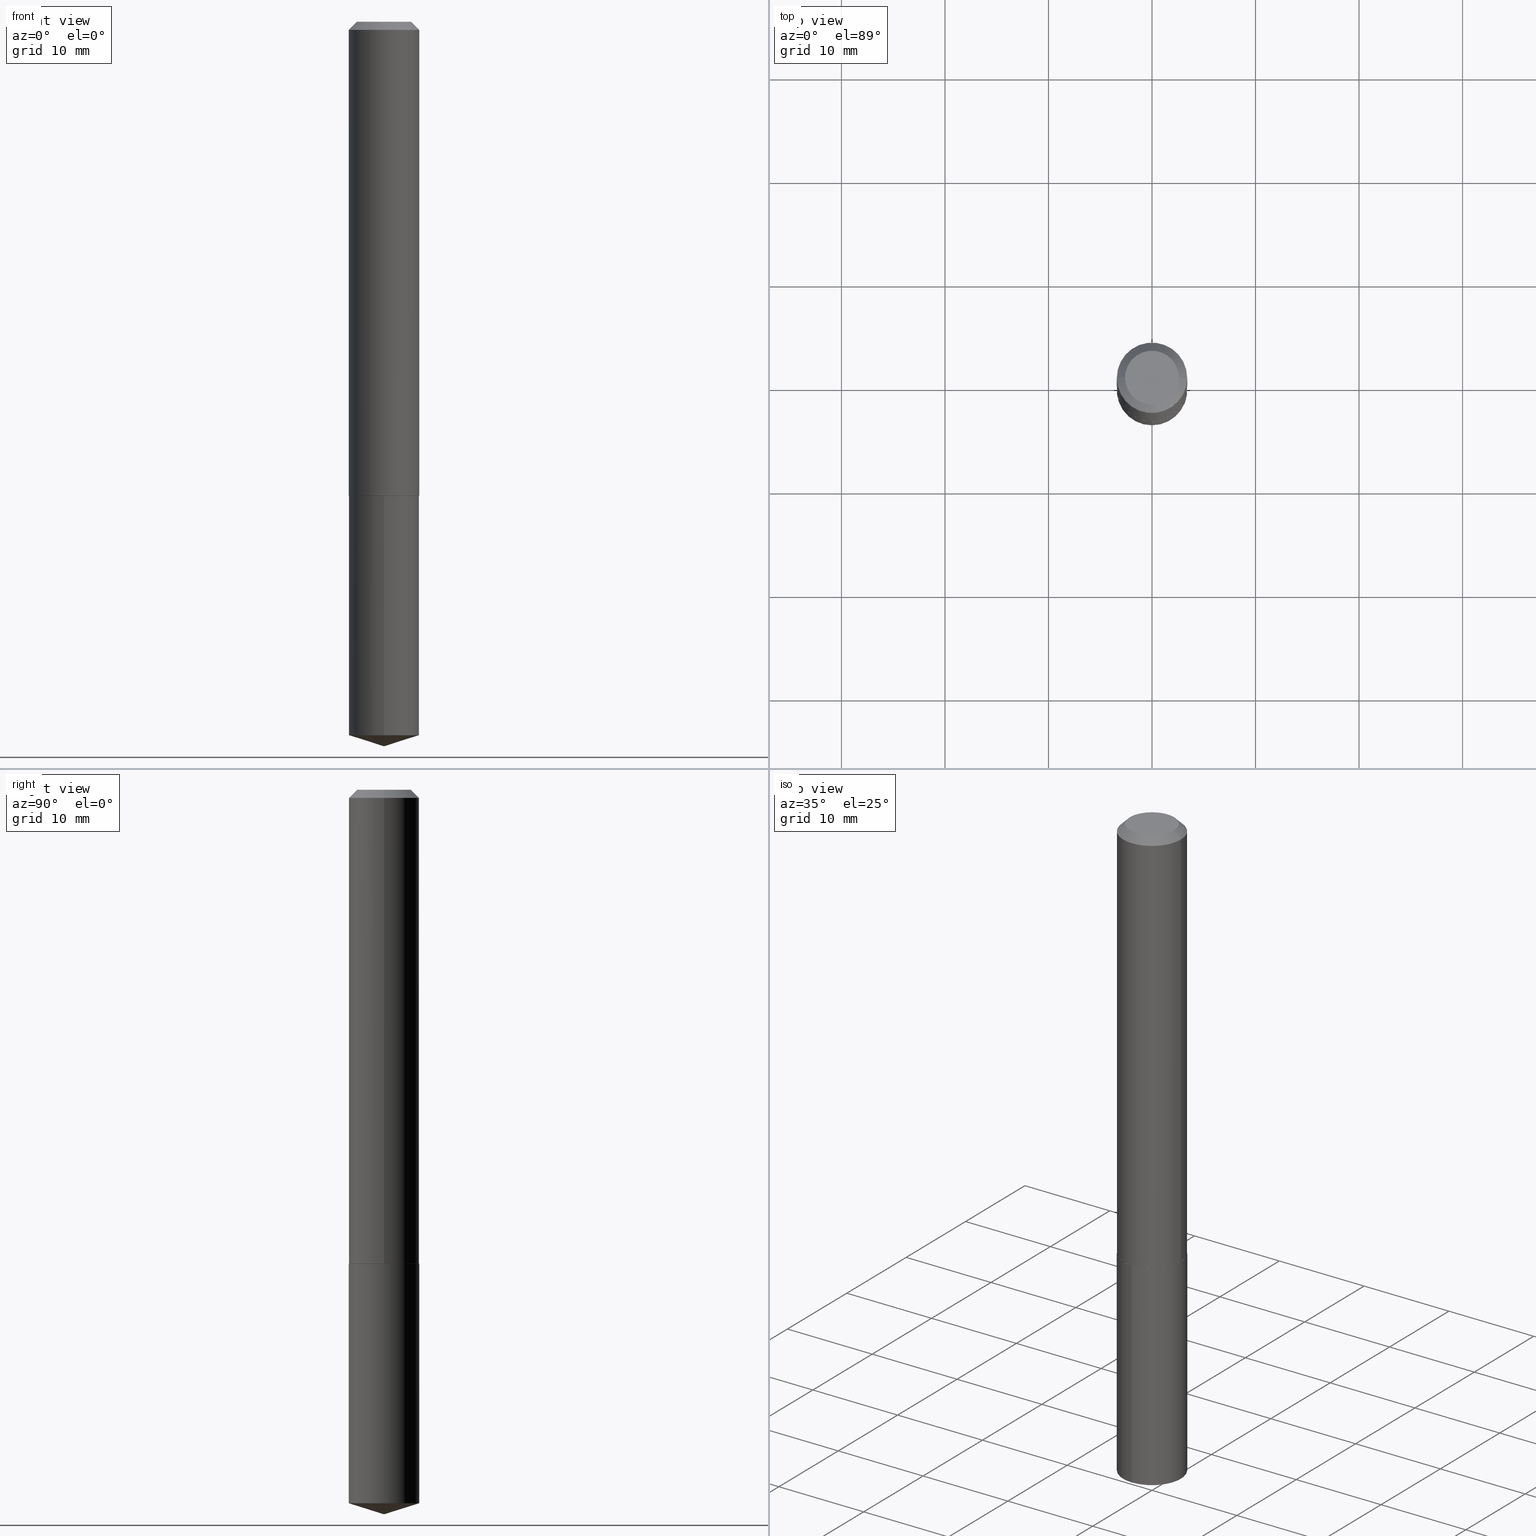
[diagram: canonical four-view strip — front | top / right | iso, engineering-drawing reading convention]
A machine part, canonical four-view strip (front | top / right | iso — engineering-drawing reading convention). The complete STEP part file that produces these views, byte-faithful:
ISO-10303-21;
HEADER;
FILE_DESCRIPTION (( 'STEP AP203' ),
    '1' );
FILE_NAME ('68603.STEP',
    '2024-04-23T13:17:34',
    ( '' ),
    ( '' ),
    'SwSTEP 2.0',
    'SolidWorks 2023',
    '' );
FILE_SCHEMA (( 'CONFIG_CONTROL_DESIGN' ));
ENDSEC;

DATA;
#1 = DIRECTION ( 'NONE',  ( 1.000000000000000000, -6.982962677686265133E-15, 0.000000000000000000 ) ) ;
#2 = CARTESIAN_POINT ( 'NONE',  ( 4.409424804432420683E-29, -6.295490002068076239E-15, -1.803100000000000147 ) ) ;
#3 = AXIS2_PLACEMENT_3D ( 'NONE', #388, #175, #363 ) ;
#4 = DIRECTION ( 'NONE',  ( 1.000000000000000000, -6.982962677686266711E-15, 4.876176775795934672E-29 ) ) ;
#5 = DIRECTION ( 'NONE',  ( -2.446102130504644901E-29, 3.490574382371028182E-15, 1.000000000000000000 ) ) ;
#6 = EDGE_LOOP ( 'NONE', ( #203, #209 ) ) ;
#7 = EDGE_CURVE ( 'NONE', #46, #259, #85, .T. ) ;
#8 = ORIENTED_EDGE ( 'NONE', *, *, #302, .T. ) ;
#9 = DIRECTION ( 'NONE',  ( -6.982962677686265133E-15, -1.000000000000000000, 4.081954417130015942E-15 ) ) ;
#10 = DIRECTION ( 'NONE',  ( 2.445468806185136597E-29, -3.491481338843145583E-15, -1.000000000000000000 ) ) ;
#11 = VECTOR ( 'NONE', #118, 39.37007874015748143 ) ;
#12 = CARTESIAN_POINT ( 'NONE',  ( -0.1338499999999999968, -2.250365074803857250E-15, -0.03125000000000022898 ) ) ;
#13 = EDGE_LOOP ( 'NONE', ( #268, #213, #58, #53 ) ) ;
#14 = SECURITY_CLASSIFICATION_LEVEL ( 'unclassified' ) ;
#15 = CC_DESIGN_DATE_AND_TIME_ASSIGNMENT ( #95, #52, ( #185 ) ) ;
#16 = ORIENTED_EDGE ( 'NONE', *, *, #190, .F. ) ;
#17 = ORIENTED_EDGE ( 'NONE', *, *, #198, .T. ) ;
#18 = DIRECTION ( 'NONE',  ( 1.000000000000000000, -6.982962677686265922E-15, 0.000000000000000000 ) ) ;
#19 = AXIS2_PLACEMENT_3D ( 'NONE', #288, #92, #323 ) ;
#20 = APPROVAL ( #32, 'UNSPECIFIED' ) ;
#21 = CARTESIAN_POINT ( 'NONE',  ( 4.409424804432420683E-29, -6.295490002068076239E-15, -1.803100000000000147 ) ) ;
#22 = DIRECTION ( 'NONE',  ( 1.000000000000000000, -6.982962677686265133E-15, 0.000000000000000000 ) ) ;
#23 = FACE_OUTER_BOUND ( 'NONE', #228, .T. ) ;
#24 = DIRECTION ( 'NONE',  ( -2.446102130504644901E-29, 3.490574382371028182E-15, 1.000000000000000000 ) ) ;
#25 = ORIENTED_EDGE ( 'NONE', *, *, #7, .T. ) ;
#26 = DIRECTION ( 'NONE',  ( 1.000000000000000000, -6.982962677686265922E-15, 4.876176775795935793E-29 ) ) ;
#27 = AXIS2_PLACEMENT_3D ( 'NONE', #73, #115, #248 ) ;
#28 = AXIS2_PLACEMENT_3D ( 'NONE', #180, #386, #243 ) ;
#29 = FACE_OUTER_BOUND ( 'NONE', #143, .T. ) ;
#30 = ORIENTED_EDGE ( 'NONE', *, *, #234, .F. ) ;
#31 = CARTESIAN_POINT ( 'NONE',  ( 4.409424804432420683E-29, -6.295490002068076239E-15, -1.803100000000000147 ) ) ;
#32 = APPROVAL_STATUS ( 'not_yet_approved' ) ;
#33 = ADVANCED_FACE ( 'NONE', ( #187 ), #276, .F. ) ;
#34 = AXIS2_PLACEMENT_3D ( 'NONE', #156, #10, #146 ) ;
#35 = EDGE_CURVE ( 'NONE', #46, #169, #88, .T. ) ;
#36 = APPROVAL_PERSON_ORGANIZATION ( #312, #20, #254 ) ;
#37 = CARTESIAN_POINT ( 'NONE',  ( 6.741212861457751070E-29, -9.619673940376316293E-15, -2.755900000000000016 ) ) ;
#38 = PLANE ( 'NONE',  #194 ) ;
#39 = ORIENTED_EDGE ( 'NONE', *, *, #322, .F. ) ;
#40 = EDGE_LOOP ( 'NONE', ( #56, #67, #241, #247 ) ) ;
#41 = APPROVAL_DATE_TIME ( #333, #218 ) ;
#42 = ORIENTED_EDGE ( 'NONE', *, *, #190, .T. ) ;
#43 = VECTOR ( 'NONE', #253, 39.37007874015748143 ) ;
#44 = LOCAL_TIME ( 9, 17, 34.00000000000000000, #345 ) ;
#45 = CARTESIAN_POINT ( 'NONE',  ( 0.1338500000000001910, -7.228413815806964033E-15, -1.802600000000000646 ) ) ;
#46 = VERTEX_POINT ( 'NONE', #37 ) ;
#47 = CALENDAR_DATE ( 2024, 23, 4 ) ;
#48 = PERSON_AND_ORGANIZATION ( #280, #51 ) ;
#49 = COORDINATED_UNIVERSAL_TIME_OFFSET ( 5, 0, .BEHIND. ) ;
#50 = ADVANCED_FACE ( 'NONE', ( #226 ), #86, .T. ) ;
#51 = ORGANIZATION ( 'UNSPECIFIED', 'UNSPECIFIED', '' ) ;
#52 = DATE_TIME_ROLE ( 'creation_date' ) ;
#53 = ORIENTED_EDGE ( 'NONE', *, *, #162, .F. ) ;
#54 = CARTESIAN_POINT ( 'NONE',  ( -9.346695544082625583E-16, -0.1338500000000062973, -1.803099999999999703 ) ) ;
#55 = DIRECTION ( 'NONE',  ( 0.7071067811865451302, -7.319954787623248157E-15, -0.7071067811865499042 ) ) ;
#56 = ORIENTED_EDGE ( 'NONE', *, *, #224, .F. ) ;
#57 = AXIS2_PLACEMENT_3D ( 'NONE', #188, #122, #369 ) ;
#58 = ORIENTED_EDGE ( 'NONE', *, *, #383, .T. ) ;
#59 = CARTESIAN_POINT ( 'NONE',  ( 0.000000000000000000, 0.000000000000000000, 0.000000000000000000 ) ) ;
#60 = ORIENTED_EDGE ( 'NONE', *, *, #302, .F. ) ;
#61 = DIRECTION ( 'NONE',  ( -2.445468806185136597E-29, 3.491481338843145583E-15, 1.000000000000000000 ) ) ;
#62 = DIMENSIONAL_EXPONENTS ( 1.000000000000000000, 0.000000000000000000, 0.000000000000000000, 0.000000000000000000, 0.000000000000000000, 0.000000000000000000, 0.000000000000000000 ) ;
#63 = DIRECTION ( 'NONE',  ( -2.446102130504644901E-29, 3.490574382371028182E-15, 1.000000000000000000 ) ) ;
#64 = AXIS2_PLACEMENT_3D ( 'NONE', #21, #244, #80 ) ;
#65 = SECURITY_CLASSIFICATION ( '', '', #14 ) ;
#66 = CYLINDRICAL_SURFACE ( 'NONE', #338, 0.1338500000000001078 ) ;
#67 = ORIENTED_EDGE ( 'NONE', *, *, #174, .T. ) ;
#68 = CARTESIAN_POINT ( 'NONE',  ( 0.000000000000000000, 0.000000000000000000, 0.000000000000000000 ) ) ;
#69 = ORIENTED_EDGE ( 'NONE', *, *, #342, .F. ) ;
#70 = ORIENTED_EDGE ( 'NONE', *, *, #112, .F. ) ;
#71 = CIRCLE ( 'NONE', #145, 0.1025999999999999829 ) ;
#72 = CIRCLE ( 'NONE', #57, 0.1338499999999999968 ) ;
#73 = CARTESIAN_POINT ( 'NONE',  ( 6.636838695077328277E-29, -9.473997460388503922E-15, -2.713697257108548921 ) ) ;
#74 = EDGE_CURVE ( 'NONE', #96, #321, #236, .T. ) ;
#75 = APPROVAL_PERSON_ORGANIZATION ( #103, #309, #263 ) ;
#76 = ORIENTED_EDGE ( 'NONE', *, *, #35, .T. ) ;
#77 = DIRECTION ( 'NONE',  ( -2.446102130504644901E-29, 3.490574382371028182E-15, 1.000000000000000000 ) ) ;
#78 = CC_DESIGN_APPROVAL ( #20, ( #185 ) ) ;
#79 = FACE_OUTER_BOUND ( 'NONE', #327, .T. ) ;
#80 = DIRECTION ( 'NONE',  ( 6.982962677686265922E-15, 1.000000000000000000, -3.490574382371027788E-15 ) ) ;
#81 = CC_DESIGN_PERSON_AND_ORGANIZATION_ASSIGNMENT ( #344, #221, ( #172 ) ) ;
#82 = CARTESIAN_POINT ( 'NONE',  ( 9.510614518149603401E-16, 0.1338499999999936685, -1.803100000000000813 ) ) ;
#83 = AXIS2_PLACEMENT_3D ( 'NONE', #372, #5, #9 ) ;
#84 = ADVANCED_FACE ( 'NONE', ( #382 ), #384, .F. ) ;
#85 = LINE ( 'NONE', #229, #43 ) ;
#86 = CONICAL_SURFACE ( 'NONE', #34, 0.1338499999999999968, 0.7853981633974449483 ) ;
#87 = AXIS2_PLACEMENT_3D ( 'NONE', #31, #144, #150 ) ;
#88 = LINE ( 'NONE', #90, #152 ) ;
#89 = CARTESIAN_POINT ( 'NONE',  ( -0.1338500000000001910, -5.342682809583759673E-15, -1.802600000000000646 ) ) ;
#90 = CARTESIAN_POINT ( 'NONE',  ( 6.741232888513621805E-29, -9.619673940376316293E-15, -2.755900000000000016 ) ) ;
#91 = CARTESIAN_POINT ( 'NONE',  ( 0.1338500000000001910, -7.228413815806964033E-15, -1.802600000000000646 ) ) ;
#92 = DIRECTION ( 'NONE',  ( -2.445468806185136597E-29, 3.491481338843145583E-15, 1.000000000000000000 ) ) ;
#93 = VECTOR ( 'NONE', #306, 39.37007874015748143 ) ;
#94 = ADVANCED_FACE ( 'NONE', ( #79 ), #293, .T. ) ;
#95 = DATE_AND_TIME ( #47, #355 ) ;
#96 = VERTEX_POINT ( 'NONE', #211 ) ;
#97 = DATE_TIME_ROLE ( 'classification_date' ) ;
#98 = CALENDAR_DATE ( 2024, 23, 4 ) ;
#99 = FACE_OUTER_BOUND ( 'NONE', #389, .T. ) ;
#100 = VECTOR ( 'NONE', #131, 39.37007874015748143 ) ;
#101 = CARTESIAN_POINT ( 'NONE',  ( 0.1338499999999999968, -1.043778346247155835E-15, -0.03125000000000022898 ) ) ;
#102 = EDGE_CURVE ( 'NONE', #138, #316, #71, .T. ) ;
#103 = PERSON_AND_ORGANIZATION ( #280, #51 ) ;
#104 = DIRECTION ( 'NONE',  ( 2.445468806185136597E-29, -3.491481338843145583E-15, -1.000000000000000000 ) ) ;
#105 =( CONVERSION_BASED_UNIT ( 'INCH', #238 ) LENGTH_UNIT ( ) NAMED_UNIT ( #62 ) );
#106 = DIRECTION ( 'NONE',  ( -2.445468806185136597E-29, 3.491481338843145583E-15, 1.000000000000000000 ) ) ;
#107 = ORIENTED_EDGE ( 'NONE', *, *, #7, .F. ) ;
#108 = EDGE_CURVE ( 'NONE', #259, #124, #205, .T. ) ;
#109 = LINE ( 'NONE', #357, #136 ) ;
#110 = VERTEX_POINT ( 'NONE', #82 ) ;
#111 = DIRECTION ( 'NONE',  ( -2.445468806185136597E-29, 3.491481338843145583E-15, 1.000000000000000000 ) ) ;
#112 = EDGE_CURVE ( 'NONE', #259, #169, #373, .T. ) ;
#113 = DIRECTION ( 'NONE',  ( 1.000000000000000000, -6.982962677686266711E-15, 4.876176775795934672E-29 ) ) ;
#114 = LINE ( 'NONE', #366, #11 ) ;
#115 = DIRECTION ( 'NONE',  ( -2.446102130504644901E-29, 3.490574382371028182E-15, 1.000000000000000000 ) ) ;
#116 = APPLICATION_PROTOCOL_DEFINITION ( 'international standard', 'config_control_design', 1994, #127 ) ;
#117 = CARTESIAN_POINT ( 'NONE',  ( 6.636838695077328277E-29, -9.473997460388503922E-15, -2.713697257108548921 ) ) ;
#118 = DIRECTION ( 'NONE',  ( -2.445468806185136877E-29, 3.491481338843145188E-15, 1.000000000000000000 ) ) ;
#119 = LINE ( 'NONE', #252, #93 ) ;
#120 = EDGE_CURVE ( 'NONE', #138, #141, #367, .T. ) ;
#121 = ORIENTED_EDGE ( 'NONE', *, *, #329, .F. ) ;
#122 = DIRECTION ( 'NONE',  ( -2.445468806185136597E-29, 3.491481338843145583E-15, 1.000000000000000000 ) ) ;
#123 = CARTESIAN_POINT ( 'NONE',  ( -8.956316257005759783E-28, 1.278028790087327418E-13, 36.61417874015747742 ) ) ;
#124 = VERTEX_POINT ( 'NONE', #54 ) ;
#125 = CLOSED_SHELL ( 'NONE', ( #157, #246, #365, #297, #235, #266, #50, #33 ) ) ;
#126 = EDGE_LOOP ( 'NONE', ( #17, #8 ) ) ;
#127 = APPLICATION_CONTEXT ( 'configuration controlled 3d designs of mechanical parts and assemblies' ) ;
#128 = ORIENTED_EDGE ( 'NONE', *, *, #142, .F. ) ;
#129 = FACE_OUTER_BOUND ( 'NONE', #13, .T. ) ;
#130 = PERSON_AND_ORGANIZATION ( #280, #51 ) ;
#131 = DIRECTION ( 'NONE',  ( -0.7071067811868855246, 7.493145998871575317E-15, 0.7071067811862095098 ) ) ;
#132 = VERTEX_POINT ( 'NONE', #260 ) ;
#133 =( NAMED_UNIT ( * ) SI_UNIT ( $, .STERADIAN. ) SOLID_ANGLE_UNIT ( ) );
#134 = FACE_OUTER_BOUND ( 'NONE', #6, .T. ) ;
#135 = VECTOR ( 'NONE', #305, 39.37007874015748143 ) ;
#136 = VECTOR ( 'NONE', #308, 39.37007874015748143 ) ;
#137 = CALENDAR_DATE ( 2024, 23, 4 ) ;
#138 = VERTEX_POINT ( 'NONE', #170 ) ;
#139 = UNCERTAINTY_MEASURE_WITH_UNIT (LENGTH_MEASURE( 1.000000000000000082E-05 ), #105, 'distance_accuracy_value', 'NONE');
#140 = DIRECTION ( 'NONE',  ( -2.445468806185136597E-29, 3.491481338843145583E-15, 1.000000000000000000 ) ) ;
#141 = VERTEX_POINT ( 'NONE', #101 ) ;
#142 = EDGE_CURVE ( 'NONE', #96, #279, #201, .T. ) ;
#143 = EDGE_LOOP ( 'NONE', ( #158, #281, #149, #30 ) ) ;
#144 = DIRECTION ( 'NONE',  ( -2.446102130504644901E-29, 3.490574382371028182E-15, 1.000000000000000000 ) ) ;
#145 = AXIS2_PLACEMENT_3D ( 'NONE', #267, #106, #264 ) ;
#146 = DIRECTION ( 'NONE',  ( -1.000000000000000000, 6.982962677686266711E-15, 0.000000000000000000 ) ) ;
#147 = VERTEX_POINT ( 'NONE', #12 ) ;
#148 = FACE_OUTER_BOUND ( 'NONE', #356, .T. ) ;
#149 = ORIENTED_EDGE ( 'NONE', *, *, #250, .T. ) ;
#150 = DIRECTION ( 'NONE',  ( -6.982962677686265133E-15, -1.000000000000000000, 4.081954417130015942E-15 ) ) ;
#151 = CARTESIAN_POINT ( 'NONE',  ( 0.1338499999999999968, -1.027386448840568494E-15, -0.03125000000000022898 ) ) ;
#152 = VECTOR ( 'NONE', #192, 39.37007874015748854 ) ;
#153 = CIRCLE ( 'NONE', #19, 0.1338500000000001910 ) ;
#154 = CYLINDRICAL_SURFACE ( 'NONE', #173, 0.1338500000000001078 ) ;
#155 = MECHANICAL_CONTEXT ( 'NONE', #127, 'mechanical' ) ;
#156 = CARTESIAN_POINT ( 'NONE',  ( 7.642090019328607041E-31, -1.091087918388490883E-16, -0.03125000000000022898 ) ) ;
#157 = ADVANCED_FACE ( 'NONE', ( #129 ), #160, .T. ) ;
#158 = ORIENTED_EDGE ( 'NONE', *, *, #371, .F. ) ;
#159 = EDGE_LOOP ( 'NONE', ( #376, #25, #121 ) ) ;
#160 = CONICAL_SURFACE ( 'NONE', #380, 0.1338499999999999968, 0.7853981633974449483 ) ;
#161 = CC_DESIGN_APPROVAL ( #309, ( #65 ) ) ;
#162 = EDGE_CURVE ( 'NONE', #316, #147, #210, .T. ) ;
#163 = ADVANCED_FACE ( 'NONE', ( #23 ), #214, .T. ) ;
#164 = DIRECTION ( 'NONE',  ( -2.446102130504644901E-29, 3.490574382371028182E-15, 1.000000000000000000 ) ) ;
#165 = ORIENTED_EDGE ( 'NONE', *, *, #102, .T. ) ;
#166 = MANIFOLD_SOLID_BREP ( 'Body-Move/Copy2[1]', #269 ) ;
#167 = PERSON_AND_ORGANIZATION_ROLE ( 'classification_officer' ) ;
#168 = SHAPE_DEFINITION_REPRESENTATION ( #195, #332 ) ;
#169 = VERTEX_POINT ( 'NONE', #240 ) ;
#170 = CARTESIAN_POINT ( 'NONE',  ( 0.1025999999999999829, -8.656367717059636643E-16, -8.199010320285999093E-18 ) ) ;
#171 = APPLICATION_CONTEXT ( 'configuration controlled 3d designs of mechanical parts and assemblies' ) ;
#172 = PRODUCT ( '68603', '68603', '', ( #155 ) ) ;
#173 = AXIS2_PLACEMENT_3D ( 'NONE', #68, #212, #4 ) ;
#174 = EDGE_CURVE ( 'NONE', #321, #96, #364, .T. ) ;
#175 = DIRECTION ( 'NONE',  ( -2.445468806185136597E-29, 3.491481338843145583E-15, 1.000000000000000000 ) ) ;
#176 = ORIENTED_EDGE ( 'NONE', *, *, #224, .T. ) ;
#177 = DIRECTION ( 'NONE',  ( -2.446102130504644901E-29, 3.490574382371028182E-15, 1.000000000000000000 ) ) ;
#178 = DIRECTION ( 'NONE',  ( -0.7071067811865451302, 2.468850131082231817E-15, -0.7071067811865499042 ) ) ;
#179 = CARTESIAN_POINT ( 'NONE',  ( -9.346695544082625583E-16, -0.1338500000000062973, -1.803099999999999703 ) ) ;
#180 = CARTESIAN_POINT ( 'NONE',  ( 4.408202070029328442E-29, -6.293744261398656313E-15, -1.802600000000000646 ) ) ;
#181 = VECTOR ( 'NONE', #287, 39.37007874015748143 ) ;
#182 = CIRCLE ( 'NONE', #87, 0.1338499999999999968 ) ;
#183 = DIRECTION ( 'NONE',  ( -2.445468806185136597E-29, 3.491481338843145583E-15, 1.000000000000000000 ) ) ;
#184 = ORIENTED_EDGE ( 'NONE', *, *, #112, .T. ) ;
#185 = PRODUCT_DEFINITION ( 'UNKNOWN', '', #237, #274 ) ;
#186 = CARTESIAN_POINT ( 'NONE',  ( -9.346695544082404702E-16, -0.1338500000000095169, -2.713697257108548477 ) ) ;
#187 = FACE_OUTER_BOUND ( 'NONE', #292, .T. ) ;
#188 = CARTESIAN_POINT ( 'NONE',  ( 7.642090019328607041E-31, -1.091087918388490883E-16, -0.03125000000000022898 ) ) ;
#189 = CIRCLE ( 'NONE', #83, 0.1338499999999999968 ) ;
#190 = EDGE_CURVE ( 'NONE', #316, #138, #207, .T. ) ;
#191 = LINE ( 'NONE', #89, #100 ) ;
#192 = DIRECTION ( 'NONE',  ( 6.776566513254266815E-15, 0.9537169507482301523, 0.3007057995042624610 ) ) ;
#193 = DIRECTION ( 'NONE',  ( 1.000000000000000000, -6.982962677686266711E-15, 0.000000000000000000 ) ) ;
#194 = AXIS2_PLACEMENT_3D ( 'NONE', #311, #362, #26 ) ;
#195 = PRODUCT_DEFINITION_SHAPE ( 'NONE', 'NONE',  #185 ) ;
#196 = PERSON_AND_ORGANIZATION ( #280, #51 ) ;
#197 = ORIENTED_EDGE ( 'NONE', *, *, #234, .T. ) ;
#198 = EDGE_CURVE ( 'NONE', #124, #110, #189, .T. ) ;
#199 = ADVANCED_FACE ( 'NONE', ( #285 ), #314, .T. ) ;
#200 = DATE_AND_TIME ( #137, #227 ) ;
#201 = LINE ( 'NONE', #45, #181 ) ;
#202 = COORDINATED_UNIVERSAL_TIME_OFFSET ( 5, 0, .BEHIND. ) ;
#203 = ORIENTED_EDGE ( 'NONE', *, *, #74, .F. ) ;
#204 = DIRECTION ( 'NONE',  ( -6.982962677686265133E-15, -1.000000000000000000, 4.081954417130015942E-15 ) ) ;
#205 = LINE ( 'NONE', #179, #135 ) ;
#206 = AXIS2_PLACEMENT_3D ( 'NONE', #215, #63, #239 ) ;
#207 = CIRCLE ( 'NONE', #232, 0.1025999999999999829 ) ;
#208 = CARTESIAN_POINT ( 'NONE',  ( 7.642090019328607041E-31, -1.091087918388490883E-16, -0.03125000000000022898 ) ) ;
#209 = ORIENTED_EDGE ( 'NONE', *, *, #174, .F. ) ;
#210 = LINE ( 'NONE', #304, #282 ) ;
#211 = CARTESIAN_POINT ( 'NONE',  ( 0.1333500000000003571, -7.226668075137541741E-15, -1.803099999999999925 ) ) ;
#212 = DIRECTION ( 'NONE',  ( -2.445468806185136597E-29, 3.491481338843145583E-15, 1.000000000000000000 ) ) ;
#213 = ORIENTED_EDGE ( 'NONE', *, *, #120, .T. ) ;
#214 = CYLINDRICAL_SURFACE ( 'NONE', #348, 0.1338499999999999968 ) ;
#215 = CARTESIAN_POINT ( 'NONE',  ( -8.956316257005759783E-28, 1.278028790087327418E-13, 36.61417874015747742 ) ) ;
#216 = DIRECTION ( 'NONE',  ( 1.000000000000000000, 0.000000000000000000, 0.000000000000000000 ) ) ;
#217 = DIRECTION ( 'NONE',  ( -6.982962677686265133E-15, -1.000000000000000000, 4.081954417130015942E-15 ) ) ;
#218 = APPROVAL ( #298, 'UNSPECIFIED' ) ;
#219 = CC_DESIGN_SECURITY_CLASSIFICATION ( #65, ( #237 ) ) ;
#220 =( LENGTH_UNIT ( ) NAMED_UNIT ( * ) SI_UNIT ( $, .METRE. ) );
#221 = PERSON_AND_ORGANIZATION_ROLE ( 'design_owner' ) ;
#222 = CALENDAR_DATE ( 2024, 23, 4 ) ;
#223 = CARTESIAN_POINT ( 'NONE',  ( 4.408202070029328442E-29, -6.293744261398656313E-15, -1.802600000000000646 ) ) ;
#224 = EDGE_CURVE ( 'NONE', #321, #132, #191, .T. ) ;
#225 = CC_DESIGN_PERSON_AND_ORGANIZATION_ASSIGNMENT ( #320, #291, ( #237 ) ) ;
#226 = FACE_OUTER_BOUND ( 'NONE', #255, .T. ) ;
#227 = LOCAL_TIME ( 9, 17, 34.00000000000000000, #351 ) ;
#228 = EDGE_LOOP ( 'NONE', ( #69, #331, #245, #60 ) ) ;
#229 = CARTESIAN_POINT ( 'NONE',  ( 6.738928967296739764E-29, -9.622944606806067154E-15, -2.755900000000000016 ) ) ;
#230 = DATE_AND_TIME ( #98, #284 ) ;
#231 = APPROVAL_DATE_TIME ( #289, #20 ) ;
#232 = AXIS2_PLACEMENT_3D ( 'NONE', #368, #61, #233 ) ;
#233 = DIRECTION ( 'NONE',  ( 1.000000000000000000, -6.982962677686267499E-15, 4.875720559966382131E-29 ) ) ;
#234 = EDGE_CURVE ( 'NONE', #147, #141, #270, .T. ) ;
#235 = ADVANCED_FACE ( 'NONE', ( #290 ), #326, .T. ) ;
#236 = CIRCLE ( 'NONE', #313, 0.1333500000000003571 ) ;
#237 = PRODUCT_DEFINITION_FORMATION_WITH_SPECIFIED_SOURCE ( 'ANY', '', #172, .NOT_KNOWN. ) ;
#238 = LENGTH_MEASURE_WITH_UNIT ( LENGTH_MEASURE( 0.02539999999999999897 ), #220 );
#239 = DIRECTION ( 'NONE',  ( -6.982962677686265922E-15, -1.000000000000000000, 3.500519750498644479E-15 ) ) ;
#240 = CARTESIAN_POINT ( 'NONE',  ( 9.510614518149607345E-16, 0.1338499999999905321, -2.713697257108549810 ) ) ;
#241 = ORIENTED_EDGE ( 'NONE', *, *, #142, .T. ) ;
#242 = AXIS2_PLACEMENT_3D ( 'NONE', #2, #24, #217 ) ;
#243 = DIRECTION ( 'NONE',  ( 1.000000000000000000, -6.982962677686265133E-15, 0.000000000000000000 ) ) ;
#244 = DIRECTION ( 'NONE',  ( 2.446102130504644621E-29, -3.490574382371027788E-15, -1.000000000000000000 ) ) ;
#245 = ORIENTED_EDGE ( 'NONE', *, *, #108, .T. ) ;
#246 = ADVANCED_FACE ( 'NONE', ( #99 ), #154, .T. ) ;
#247 = ORIENTED_EDGE ( 'NONE', *, *, #283, .F. ) ;
#248 = DIRECTION ( 'NONE',  ( -6.982962677686265133E-15, -1.000000000000000000, 4.081954417130015942E-15 ) ) ;
#249 = APPLICATION_PROTOCOL_DEFINITION ( 'international standard', 'config_control_design', 1994, #171 ) ;
#250 = EDGE_CURVE ( 'NONE', #279, #141, #119, .T. ) ;
#251 = CC_DESIGN_PERSON_AND_ORGANIZATION_ASSIGNMENT ( #48, #167, ( #65 ) ) ;
#252 = CARTESIAN_POINT ( 'NONE',  ( 0.1338500000000001078, -9.346695544083075234E-16, 6.526762614402863887E-30 ) ) ;
#253 = DIRECTION ( 'NONE',  ( -6.659769872151642344E-15, -0.9537169507482281539, 0.3007057995042691778 ) ) ;
#254 = APPROVAL_ROLE ( '' ) ;
#255 = EDGE_LOOP ( 'NONE', ( #295, #16, #353, #197 ) ) ;
#256 = VECTOR ( 'NONE', #55, 39.37007874015748143 ) ;
#257 = CC_DESIGN_DATE_AND_TIME_ASSIGNMENT ( #200, #97, ( #65 ) ) ;
#258 = DIRECTION ( 'NONE',  ( -2.445468806185136597E-29, 3.491481338843145583E-15, 1.000000000000000000 ) ) ;
#259 = VERTEX_POINT ( 'NONE', #186 ) ;
#260 = CARTESIAN_POINT ( 'NONE',  ( -0.1338500000000001910, -5.342682809583759673E-15, -1.802600000000000646 ) ) ;
#261 = AXIS2_PLACEMENT_3D ( 'NONE', #59, #359, #216 ) ;
#262 = ADVANCED_FACE ( 'NONE', ( #301 ), #360, .T. ) ;
#263 = APPROVAL_ROLE ( '' ) ;
#264 = DIRECTION ( 'NONE',  ( 1.000000000000000000, -6.982962677686267499E-15, 4.875720559966382131E-29 ) ) ;
#265 = PERSON_AND_ORGANIZATION ( #280, #51 ) ;
#266 = ADVANCED_FACE ( 'NONE', ( #29 ), #66, .T. ) ;
#267 = CARTESIAN_POINT ( 'NONE',  ( 2.005042397986293967E-46, -2.862669153028024165E-32, -8.199010320291530364E-18 ) ) ;
#268 = ORIENTED_EDGE ( 'NONE', *, *, #102, .F. ) ;
#269 = CLOSED_SHELL ( 'NONE', ( #262, #94, #199, #163, #84 ) ) ;
#270 = CIRCLE ( 'NONE', #349, 0.1338499999999999968 ) ;
#271 = CALENDAR_DATE ( 2024, 23, 4 ) ;
#272 = ORIENTED_EDGE ( 'NONE', *, *, #250, .F. ) ;
#273 = CARTESIAN_POINT ( 'NONE',  ( 0.000000000000000000, 0.000000000000000000, 0.000000000000000000 ) ) ;
#274 = DESIGN_CONTEXT ( 'detailed design', #171, 'design' ) ;
#275 = CARTESIAN_POINT ( 'NONE',  ( -0.1333500000000003571, -5.345332036757870085E-15, -1.803099999999999925 ) ) ;
#276 = PLANE ( 'NONE',  #377 ) ;
#277 = CARTESIAN_POINT ( 'NONE',  ( -0.1025999999999999829, 7.710063666500343655E-16, -8.199010320296730375E-18 ) ) ;
#278 = AXIS2_PLACEMENT_3D ( 'NONE', #123, #164, #319 ) ;
#279 = VERTEX_POINT ( 'NONE', #91 ) ;
#280 = PERSON ( 'UNSPECIFIED', 'UNSPECIFIED', 'UNSPECIFIED', ('UNSPECIFIED'), ('UNSPECIFIED'), ('UNSPECIFIED') ) ;
#281 = ORIENTED_EDGE ( 'NONE', *, *, #283, .T. ) ;
#282 = VECTOR ( 'NONE', #178, 39.37007874015748143 ) ;
#283 = EDGE_CURVE ( 'NONE', #132, #279, #153, .T. ) ;
#284 = LOCAL_TIME ( 9, 17, 34.00000000000000000, #49 ) ;
#285 = FACE_OUTER_BOUND ( 'NONE', #159, .T. ) ;
#286 = DIRECTION ( 'NONE',  ( -1.000000000000000000, 6.982962677686265922E-15, -4.876176775795935793E-29 ) ) ;
#287 = DIRECTION ( 'NONE',  ( 0.7071067811868855246, -2.468850131085797074E-15, 0.7071067811862095098 ) ) ;
#288 = CARTESIAN_POINT ( 'NONE',  ( 4.408202070029328442E-29, -6.293744261398656313E-15, -1.802600000000000646 ) ) ;
#289 = DATE_AND_TIME ( #222, #44 ) ;
#290 = FACE_OUTER_BOUND ( 'NONE', #40, .T. ) ;
#291 = PERSON_AND_ORGANIZATION_ROLE ( 'creator' ) ;
#292 = EDGE_LOOP ( 'NONE', ( #42, #165 ) ) ;
#293 = CONICAL_SURFACE ( 'NONE', #206, 124.8659371009172077, 1.265363707695896567 ) ;
#294 = AXIS2_PLACEMENT_3D ( 'NONE', #223, #140, #22 ) ;
#295 = ORIENTED_EDGE ( 'NONE', *, *, #120, .F. ) ;
#296 = ORIENTED_EDGE ( 'NONE', *, *, #371, .T. ) ;
#297 = ADVANCED_FACE ( 'NONE', ( #134 ), #38, .F. ) ;
#298 = APPROVAL_STATUS ( 'not_yet_approved' ) ;
#299 = AXIS2_PLACEMENT_3D ( 'NONE', #390, #111, #1 ) ;
#300 = DIRECTION ( 'NONE',  ( -1.000000000000000000, 6.982962677686266711E-15, 0.000000000000000000 ) ) ;
#301 = FACE_OUTER_BOUND ( 'NONE', #325, .T. ) ;
#302 = EDGE_CURVE ( 'NONE', #110, #124, #182, .T. ) ;
#303 = DIRECTION ( 'NONE',  ( -6.982962677686265133E-15, -1.000000000000000000, 4.081954417130015942E-15 ) ) ;
#304 = CARTESIAN_POINT ( 'NONE',  ( -0.1338499999999999968, 8.255607625694576339E-16, -0.03125000000000022898 ) ) ;
#305 = DIRECTION ( 'NONE',  ( -2.446102130504645182E-29, 3.490574382371027788E-15, 1.000000000000000000 ) ) ;
#306 = DIRECTION ( 'NONE',  ( -2.445468806185136877E-29, 3.491481338843145188E-15, 1.000000000000000000 ) ) ;
#307 =( GEOMETRIC_REPRESENTATION_CONTEXT ( 3 ) GLOBAL_UNCERTAINTY_ASSIGNED_CONTEXT ( ( #139 ) ) GLOBAL_UNIT_ASSIGNED_CONTEXT ( ( #105, #339, #133 ) ) REPRESENTATION_CONTEXT ( 'NONE', 'WORKASPACE' ) );
#308 = DIRECTION ( 'NONE',  ( -2.446102130504645182E-29, 3.490574382371027788E-15, 1.000000000000000000 ) ) ;
#309 = APPROVAL ( #354, 'UNSPECIFIED' ) ;
#310 = ORIENTED_EDGE ( 'NONE', *, *, #74, .T. ) ;
#311 = CARTESIAN_POINT ( 'NONE',  ( 6.988850635895938822E-29, -2.601605399611365038E-15, -1.803100000000000147 ) ) ;
#312 = PERSON_AND_ORGANIZATION ( #280, #51 ) ;
#313 = AXIS2_PLACEMENT_3D ( 'NONE', #358, #387, #18 ) ;
#314 = CONICAL_SURFACE ( 'NONE', #278, 124.8659371009172077, 1.265363707695896567 ) ;
#315 = MANIFOLD_SOLID_BREP ( 'Body-Move/Copy2[2]', #125 ) ;
#316 = VERTEX_POINT ( 'NONE', #277 ) ;
#317 = DIRECTION ( 'NONE',  ( 2.438088387897960049E-29, -3.491481338843145188E-15, -1.000000000000000000 ) ) ;
#318 = CIRCLE ( 'NONE', #28, 0.1338500000000001910 ) ;
#319 = DIRECTION ( 'NONE',  ( -6.982962677686265922E-15, -1.000000000000000000, 3.500519750498644479E-15 ) ) ;
#320 = PERSON_AND_ORGANIZATION ( #280, #51 ) ;
#321 = VERTEX_POINT ( 'NONE', #275 ) ;
#322 = EDGE_CURVE ( 'NONE', #279, #132, #318, .T. ) ;
#323 = DIRECTION ( 'NONE',  ( 1.000000000000000000, -6.982962677686265133E-15, 0.000000000000000000 ) ) ;
#324 = COORDINATED_UNIVERSAL_TIME_OFFSET ( 5, 0, .BEHIND. ) ;
#325 = EDGE_LOOP ( 'NONE', ( #184, #370, #337, #374 ) ) ;
#326 = CONICAL_SURFACE ( 'NONE', #294, 0.1338500000000001910, 0.7853981633979263410 ) ;
#327 = EDGE_LOOP ( 'NONE', ( #107, #76, #70 ) ) ;
#328 = APPROVAL_DATE_TIME ( #230, #309 ) ;
#329 = EDGE_CURVE ( 'NONE', #169, #259, #381, .T. ) ;
#330 = CARTESIAN_POINT ( 'NONE',  ( 4.409424804432420683E-29, -6.295490002068076239E-15, -1.803100000000000147 ) ) ;
#331 = ORIENTED_EDGE ( 'NONE', *, *, #329, .T. ) ;
#332 = ADVANCED_BREP_SHAPE_REPRESENTATION ( '68603', ( #166, #315, #261 ), #307 ) ;
#333 = DATE_AND_TIME ( #271, #352 ) ;
#334 = AXIS2_PLACEMENT_3D ( 'NONE', #117, #177, #303 ) ;
#335 = PRODUCT_RELATED_PRODUCT_CATEGORY ( 'detail', '', ( #172 ) ) ;
#336 = APPROVAL_ROLE ( '' ) ;
#337 = ORIENTED_EDGE ( 'NONE', *, *, #198, .F. ) ;
#338 = AXIS2_PLACEMENT_3D ( 'NONE', #273, #183, #113 ) ;
#339 =( NAMED_UNIT ( * ) PLANE_ANGLE_UNIT ( ) SI_UNIT ( $, .RADIAN. ) );
#340 = CARTESIAN_POINT ( 'NONE',  ( 1.002521198993146984E-46, -1.431334576514012082E-32, -4.099505160145765182E-18 ) ) ;
#341 = ORIENTED_EDGE ( 'NONE', *, *, #322, .T. ) ;
#342 = EDGE_CURVE ( 'NONE', #169, #110, #109, .T. ) ;
#343 = APPROVAL_PERSON_ORGANIZATION ( #265, #218, #336 ) ;
#344 = PERSON_AND_ORGANIZATION ( #280, #51 ) ;
#345 = COORDINATED_UNIVERSAL_TIME_OFFSET ( 5, 0, .BEHIND. ) ;
#346 = CARTESIAN_POINT ( 'NONE',  ( 7.642090019328607041E-31, -1.091087918388490883E-16, -0.03125000000000022898 ) ) ;
#347 = CC_DESIGN_PERSON_AND_ORGANIZATION_ASSIGNMENT ( #130, #350, ( #185 ) ) ;
#348 = AXIS2_PLACEMENT_3D ( 'NONE', #330, #77, #204 ) ;
#349 = AXIS2_PLACEMENT_3D ( 'NONE', #346, #258, #193 ) ;
#350 = PERSON_AND_ORGANIZATION_ROLE ( 'creator' ) ;
#351 = COORDINATED_UNIVERSAL_TIME_OFFSET ( 5, 0, .BEHIND. ) ;
#352 = LOCAL_TIME ( 9, 17, 34.00000000000000000, #202 ) ;
#353 = ORIENTED_EDGE ( 'NONE', *, *, #162, .T. ) ;
#354 = APPROVAL_STATUS ( 'not_yet_approved' ) ;
#355 = LOCAL_TIME ( 9, 17, 34.00000000000000000, #324 ) ;
#356 = EDGE_LOOP ( 'NONE', ( #310, #176, #39, #128 ) ) ;
#357 = CARTESIAN_POINT ( 'NONE',  ( 9.510614518149380547E-16, 0.1338499999999936962, -1.803100000000000813 ) ) ;
#358 = CARTESIAN_POINT ( 'NONE',  ( 4.409424804432419562E-29, -6.295490002068075450E-15, -1.803099999999999925 ) ) ;
#359 = DIRECTION ( 'NONE',  ( 0.000000000000000000, 0.000000000000000000, 1.000000000000000000 ) ) ;
#360 = CYLINDRICAL_SURFACE ( 'NONE', #242, 0.1338499999999999968 ) ;
#361 = ORIENTED_EDGE ( 'NONE', *, *, #383, .F. ) ;
#362 = DIRECTION ( 'NONE',  ( -2.438088387897960049E-29, 3.491481338843145188E-15, 1.000000000000000000 ) ) ;
#363 = DIRECTION ( 'NONE',  ( 1.000000000000000000, -6.982962677686265922E-15, 0.000000000000000000 ) ) ;
#364 = CIRCLE ( 'NONE', #3, 0.1333500000000003571 ) ;
#365 = ADVANCED_FACE ( 'NONE', ( #148 ), #379, .T. ) ;
#366 = CARTESIAN_POINT ( 'NONE',  ( -0.1338500000000001078, 9.510614518148948646E-16, -6.583994618306196527E-30 ) ) ;
#367 = LINE ( 'NONE', #151, #256 ) ;
#368 = CARTESIAN_POINT ( 'NONE',  ( 2.005042397986293967E-46, -2.862669153028024165E-32, -8.199010320291530364E-18 ) ) ;
#369 = DIRECTION ( 'NONE',  ( 1.000000000000000000, -6.982962677686266711E-15, 0.000000000000000000 ) ) ;
#370 = ORIENTED_EDGE ( 'NONE', *, *, #342, .T. ) ;
#371 = EDGE_CURVE ( 'NONE', #132, #147, #114, .T. ) ;
#372 = CARTESIAN_POINT ( 'NONE',  ( 4.409424804432420683E-29, -6.295490002068076239E-15, -1.803100000000000147 ) ) ;
#373 = CIRCLE ( 'NONE', #27, 0.1338499999999999968 ) ;
#374 = ORIENTED_EDGE ( 'NONE', *, *, #108, .F. ) ;
#375 = CC_DESIGN_PERSON_AND_ORGANIZATION_ASSIGNMENT ( #196, #378, ( #237 ) ) ;
#376 = ORIENTED_EDGE ( 'NONE', *, *, #35, .F. ) ;
#377 = AXIS2_PLACEMENT_3D ( 'NONE', #340, #317, #286 ) ;
#378 = PERSON_AND_ORGANIZATION_ROLE ( 'design_supplier' ) ;
#379 = CONICAL_SURFACE ( 'NONE', #299, 0.1338500000000001910, 0.7853981633979263410 ) ;
#380 = AXIS2_PLACEMENT_3D ( 'NONE', #208, #104, #300 ) ;
#381 = CIRCLE ( 'NONE', #334, 0.1338499999999999968 ) ;
#382 = FACE_OUTER_BOUND ( 'NONE', #126, .T. ) ;
#383 = EDGE_CURVE ( 'NONE', #141, #147, #72, .T. ) ;
#384 = PLANE ( 'NONE',  #64 ) ;
#385 = CC_DESIGN_APPROVAL ( #218, ( #237 ) ) ;
#386 = DIRECTION ( 'NONE',  ( -2.445468806185136597E-29, 3.491481338843145583E-15, 1.000000000000000000 ) ) ;
#387 = DIRECTION ( 'NONE',  ( -2.445468806185136597E-29, 3.491481338843145583E-15, 1.000000000000000000 ) ) ;
#388 = CARTESIAN_POINT ( 'NONE',  ( 4.409424804432419562E-29, -6.295490002068075450E-15, -1.803099999999999925 ) ) ;
#389 = EDGE_LOOP ( 'NONE', ( #341, #296, #361, #272 ) ) ;
#390 = CARTESIAN_POINT ( 'NONE',  ( 4.408202070029328442E-29, -6.293744261398656313E-15, -1.802600000000000646 ) ) ;
ENDSEC;
END-ISO-10303-21;
